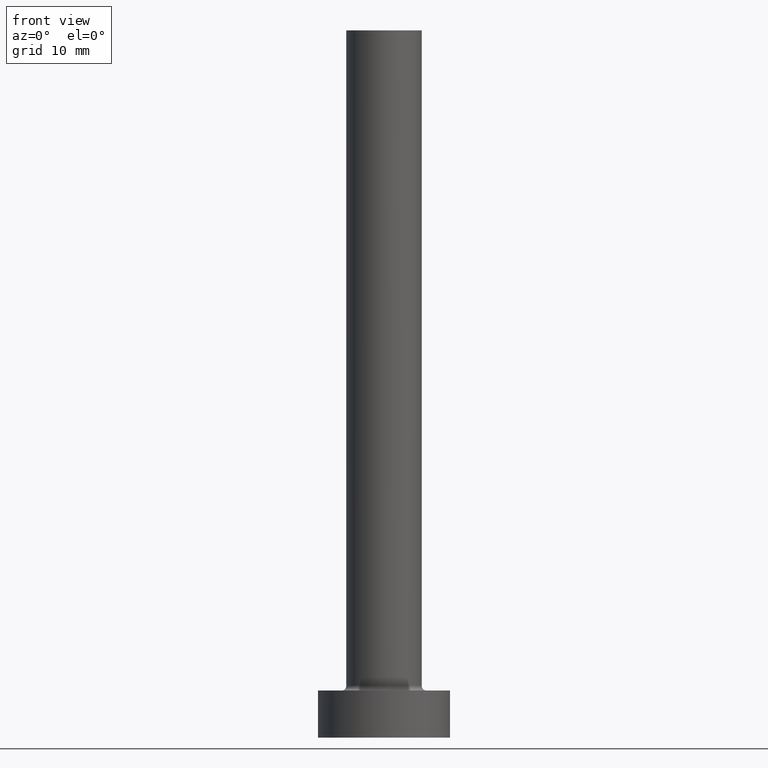
[diagram: clean part render]
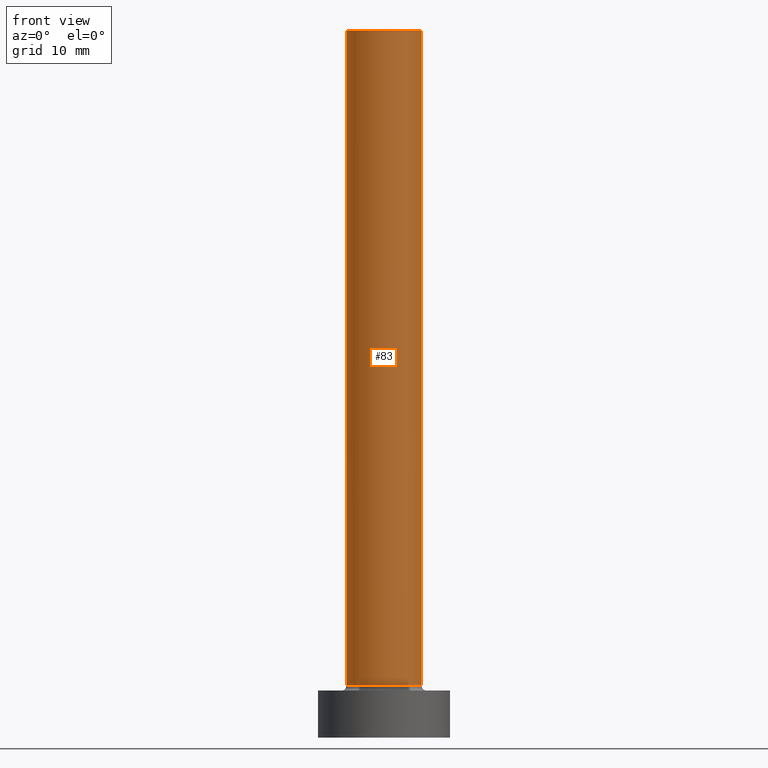
[diagram: same view with one face highlighted and labeled with its STEP entity id]
A machine part, front view. The second image highlights one B-rep face of the part: STEP entity #83.
In plain terms, the highlighted cylindrical surface (partial cylindrical patch) has radius 4 mm, axis along (-0, -0, -1).
Its self-contained STEP definition (entity closure, byte-faithful):
#6 = AXIS2_PLACEMENT_3D ( 'NONE', #418, #35, #245 ) ;
#24 = CIRCLE ( 'NONE', #287, 4.000000000000000000 ) ;
#35 = DIRECTION ( 'NONE',  ( 0.000000000000000000, 0.000000000000000000, 1.000000000000000000 ) ) ;
#45 = CYLINDRICAL_SURFACE ( 'NONE', #81, 4.000000000000000000 ) ;
#50 = EDGE_CURVE ( 'NONE', #302, #445, #24, .T. ) ;
#74 = VECTOR ( 'NONE', #380, 1000.000000000000000 ) ;
#78 = LINE ( 'NONE', #109, #74 ) ;
#81 = AXIS2_PLACEMENT_3D ( 'NONE', #125, #285, #201 ) ;
#83 = ADVANCED_FACE ( 'NONE', ( #412 ), #45, .T. ) ;
#88 = EDGE_CURVE ( 'NONE', #303, #383, #293, .T. ) ;
#109 = CARTESIAN_POINT ( 'NONE',  ( 4.000000000000000000, 4.898587196589412829E-16, 75.00000000000001421 ) ) ;
#125 = CARTESIAN_POINT ( 'NONE',  ( 0.000000000000000000, 0.000000000000000000, 75.00000000000001421 ) ) ;
#141 = VECTOR ( 'NONE', #396, 1000.000000000000000 ) ;
#188 = LINE ( 'NONE', #298, #141 ) ;
#201 = DIRECTION ( 'NONE',  ( -1.000000000000000000, 0.000000000000000000, 0.000000000000000000 ) ) ;
#232 = ORIENTED_EDGE ( 'NONE', *, *, #257, .F. ) ;
#237 = DIRECTION ( 'NONE',  ( 0.000000000000000000, 0.000000000000000000, 1.000000000000000000 ) ) ;
#241 = DIRECTION ( 'NONE',  ( 1.000000000000000000, 0.000000000000000000, 0.000000000000000000 ) ) ;
#245 = DIRECTION ( 'NONE',  ( 1.000000000000000000, 0.000000000000000000, 0.000000000000000000 ) ) ;
#256 = ORIENTED_EDGE ( 'NONE', *, *, #88, .T. ) ;
#257 = EDGE_CURVE ( 'NONE', #445, #383, #78, .T. ) ;
#285 = DIRECTION ( 'NONE',  ( -0.000000000000000000, -0.000000000000000000, -1.000000000000000000 ) ) ;
#287 = AXIS2_PLACEMENT_3D ( 'NONE', #374, #237, #241 ) ;
#293 = CIRCLE ( 'NONE', #6, 4.000000000000000000 ) ;
#298 = CARTESIAN_POINT ( 'NONE',  ( -4.000000000000000000, 0.000000000000000000, 75.00000000000001421 ) ) ;
#302 = VERTEX_POINT ( 'NONE', #428 ) ;
#303 = VERTEX_POINT ( 'NONE', #391 ) ;
#329 = EDGE_CURVE ( 'NONE', #302, #303, #188, .T. ) ;
#333 = EDGE_LOOP ( 'NONE', ( #232, #451, #371, #256 ) ) ;
#371 = ORIENTED_EDGE ( 'NONE', *, *, #329, .T. ) ;
#374 = CARTESIAN_POINT ( 'NONE',  ( 0.000000000000000000, 0.000000000000000000, 75.00000000000001421 ) ) ;
#380 = DIRECTION ( 'NONE',  ( -0.000000000000000000, -0.000000000000000000, -1.000000000000000000 ) ) ;
#383 = VERTEX_POINT ( 'NONE', #435 ) ;
#385 = CARTESIAN_POINT ( 'NONE',  ( 4.000000000000000000, 4.898587196589412829E-16, 75.00000000000001421 ) ) ;
#391 = CARTESIAN_POINT ( 'NONE',  ( -4.000000000000000000, 0.000000000000000000, 5.500000000000005329 ) ) ;
#396 = DIRECTION ( 'NONE',  ( -0.000000000000000000, -0.000000000000000000, -1.000000000000000000 ) ) ;
#412 = FACE_OUTER_BOUND ( 'NONE', #333, .T. ) ;
#418 = CARTESIAN_POINT ( 'NONE',  ( 0.000000000000000000, 0.000000000000000000, 5.500000000000005329 ) ) ;
#428 = CARTESIAN_POINT ( 'NONE',  ( -4.000000000000000000, 0.000000000000000000, 75.00000000000001421 ) ) ;
#435 = CARTESIAN_POINT ( 'NONE',  ( 4.000000000000000000, 4.898587196589412829E-16, 5.500000000000005329 ) ) ;
#445 = VERTEX_POINT ( 'NONE', #385 ) ;
#451 = ORIENTED_EDGE ( 'NONE', *, *, #50, .F. ) ;